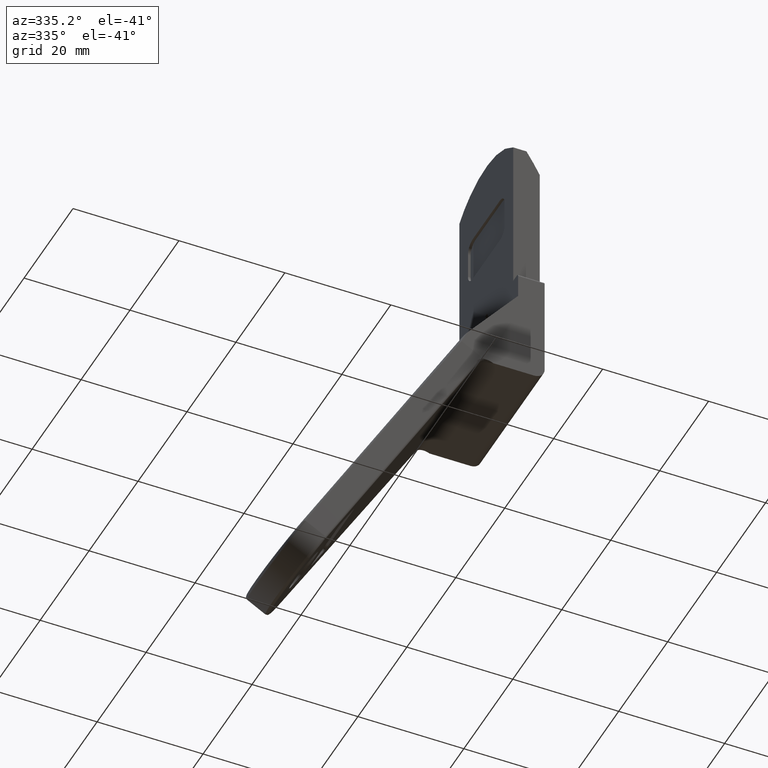
[diagram: clean part render]
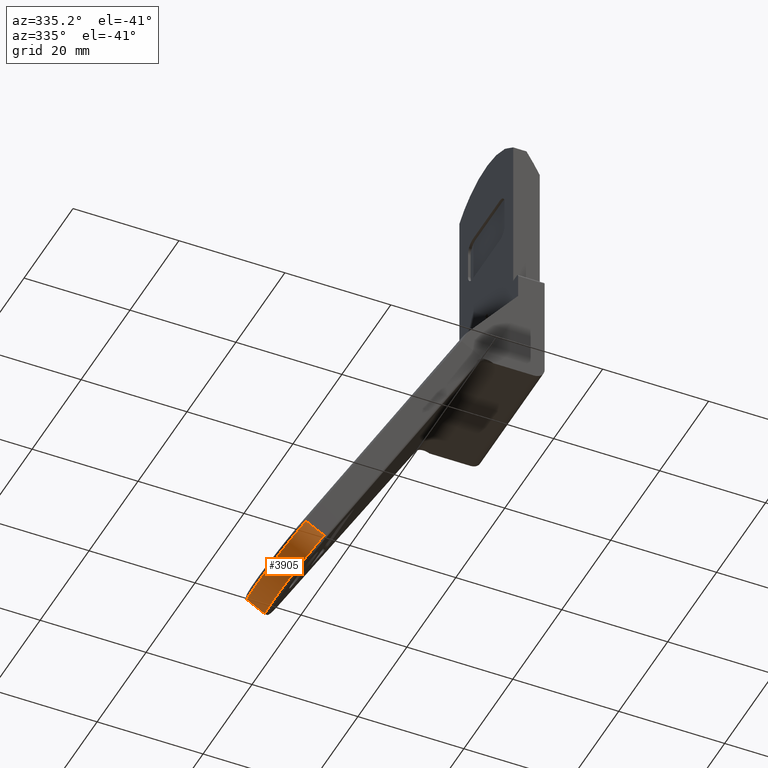
[diagram: same view with one face highlighted and labeled with its STEP entity id]
A machine part, auxiliary view. The second image highlights one B-rep face of the part: STEP entity #3905.
In plain terms, the highlighted face is a freeform B-spline surface patch.
Its self-contained STEP definition (entity closure, byte-faithful):
#244=CARTESIAN_POINT('',(-40.201222914413748,-9.985602287830561,-87.845950522211709));
#245=VERTEX_POINT('',#244);
#470=CARTESIAN_POINT('',(-40.201222914413847,9.985602287830501,-87.845950522211709));
#471=VERTEX_POINT('',#470);
#505=CARTESIAN_POINT('',(-40.201222914413769,9.985602287830494,-87.845950522211751));
#506=CARTESIAN_POINT('',(-44.933012731426551,9.477224538412539,-96.041650745072531));
#507=CARTESIAN_POINT('',(-44.933012731426551,-2.842171E-014,-96.041650745072531));
#508=CARTESIAN_POINT('',(-44.933012731426551,-9.477224538412642,-96.041650745072531));
#509=CARTESIAN_POINT('',(-40.201222914413748,-9.985602287830552,-87.845950522211709));
#517=(BOUNDED_CURVE()B_SPLINE_CURVE(2,(#505,#506,#507,#508,#509),.UNSPECIFIED.,.F.,.U.)B_SPLINE_CURVE_WITH_KNOTS((3,2,3),(0.0,0.500000000000000,1.0),.UNSPECIFIED.)CURVE()GEOMETRIC_REPRESENTATION_ITEM()RATIONAL_B_SPLINE_CURVE((1.0,0.725824376026818,1.0,0.725824376026818,1.0))REPRESENTATION_ITEM(''));
#518=EDGE_CURVE('',#471,#245,#517,.T.);
#744=CARTESIAN_POINT('',(-43.665324437025554,9.985602287830501,-85.845950538797112));
#745=VERTEX_POINT('',#744);
#886=CARTESIAN_POINT('',(-43.665324437025554,-9.985602287830561,-85.845950538797112));
#887=VERTEX_POINT('',#886);
#921=CARTESIAN_POINT('',(-43.665324437025390,-9.985602287830551,-85.845950538797211));
#922=CARTESIAN_POINT('',(-43.824643067347523,-9.968485287978155,-86.121898490919037));
#923=CARTESIAN_POINT('',(-43.982257512631627,-9.936293054079561,-86.394894708078425));
#924=CARTESIAN_POINT('',(-44.294194472674150,-9.842788143355229,-86.935185351682378));
#925=CARTESIAN_POINT('',(-44.602838778803843,-9.720156390614653,-87.469772951628045));
#926=CARTESIAN_POINT('',(-44.904947263568943,-9.539708711460719,-87.993040177319131));
#927=CARTESIAN_POINT('',(-45.129029723687722,-9.382267632776703,-88.381162368999867));
#928=CARTESIAN_POINT('',(-45.203306698099396,-9.326096904892841,-88.509813857763376));
#929=CARTESIAN_POINT('',(-45.351009392329679,-9.206225244401521,-88.765642419139482));
#930=CARTESIAN_POINT('',(-45.424085822035167,-9.142794057716763,-88.892214503551870));
#931=CARTESIAN_POINT('',(-45.639942714412932,-8.943122240299577,-89.266089594510092));
#932=CARTESIAN_POINT('',(-45.779820204686963,-8.797153075820889,-89.508364505554809));
#933=CARTESIAN_POINT('',(-46.051700608230583,-8.480078898575982,-89.979275160688005));
#934=CARTESIAN_POINT('',(-46.183703198841883,-8.308972855876357,-90.207910345915920));
#935=CARTESIAN_POINT('',(-46.439798708504703,-7.941512899484304,-90.651480763864924));
#936=CARTESIAN_POINT('',(-46.563892273236462,-7.745161046819390,-90.866417114936937));
#937=CARTESIAN_POINT('',(-46.713908191330070,-7.483438589684701,-91.126252297425651));
#938=CARTESIAN_POINT('',(-46.743680239564512,-7.430230294577784,-91.177818995709174));
#939=CARTESIAN_POINT('',(-46.802402217802758,-7.322731280156852,-91.279528441783540));
#940=CARTESIAN_POINT('',(-46.889357006373643,-7.159681499379514,-91.430138547989003));
#941=CARTESIAN_POINT('',(-46.972964446055812,-6.991287314973286,-91.574950876062559));
#942=CARTESIAN_POINT('',(-47.135784992564147,-6.647482919674729,-91.856964324718788));
#943=CARTESIAN_POINT('',(-47.341180014776661,-6.170398280089911,-92.212718925677692));
#944=CARTESIAN_POINT('',(-47.523424240472458,-5.656350896247593,-92.528375172314341));
#945=CARTESIAN_POINT('',(-47.651283670229923,-5.256727306283993,-92.749834192704483));
#946=CARTESIAN_POINT('',(-47.692430414494837,-5.121167534724464,-92.821102441706032));
#947=CARTESIAN_POINT('',(-47.751899871968213,-4.914234457601123,-92.924106559745454));
#948=CARTESIAN_POINT('',(-47.771373102473362,-4.844562759803871,-92.957835183122526));
#949=CARTESIAN_POINT('',(-47.809415643291963,-4.704544194668069,-93.023726794236566));
#950=CARTESIAN_POINT('',(-47.827981603994211,-4.634216540706490,-93.055883980276860));
#951=CARTESIAN_POINT('',(-47.918559271012271,-4.281003483840772,-93.212769095790804));
#952=CARTESIAN_POINT('',(-47.983830261427443,-3.993404693362725,-93.325821763276139));
#953=CARTESIAN_POINT('',(-48.100355302737583,-3.408405888095779,-93.527649047727664));
#954=CARTESIAN_POINT('',(-48.151608578742952,-3.111005331471977,-93.616422322545660));
#955=CARTESIAN_POINT('',(-48.240079014708229,-2.506389584893261,-93.769657606947618));
#956=CARTESIAN_POINT('',(-48.277297114711111,-2.199175052255306,-93.834121244733694));
#957=CARTESIAN_POINT('',(-48.322296316181372,-1.730781903485821,-93.912062145102510));
#958=CARTESIAN_POINT('',(-48.335498878360937,-1.573112655927853,-93.934929652743335));
#959=CARTESIAN_POINT('',(-48.357997135244133,-1.258498474889511,-93.973897775307989));
#960=CARTESIAN_POINT('',(-48.367333990242962,-1.101195331922202,-93.990069681951752));
#961=CARTESIAN_POINT('',(-48.389704993227078,-0.629297544903177,-94.028817394305932));
#962=CARTESIAN_POINT('',(-48.404519047925078,-0.000131489199506,-94.054476088761604));
#963=CARTESIAN_POINT('',(-48.389714207478193,0.628973423509678,-94.028833353856442));
#964=CARTESIAN_POINT('',(-48.367356802859533,1.100778876605819,-93.990109194561271));
#965=CARTESIAN_POINT('',(-48.358025601312072,1.258043482656972,-93.973947079982139));
#966=CARTESIAN_POINT('',(-48.335542113147113,1.572564806801873,-93.935004537586849));
#967=CARTESIAN_POINT('',(-48.322346339649677,1.730217009828419,-93.912148788288007));
#968=CARTESIAN_POINT('',(-48.277345243814899,2.198762268885100,-93.834204606783700));
#969=CARTESIAN_POINT('',(-48.240124335777281,2.506043650435769,-93.769736105338964));
#970=CARTESIAN_POINT('',(-48.151653872702283,3.110731956762930,-93.616500773981613));
#971=CARTESIAN_POINT('',(-48.100403338922682,3.408138192624289,-93.527732248837737));
#972=CARTESIAN_POINT('',(-47.983897609628272,3.993093090274212,-93.325938413777479));
#973=CARTESIAN_POINT('',(-47.918643149765742,4.280642269872294,-93.212914378048112));
#974=CARTESIAN_POINT('',(-47.828100425838947,4.633761685811847,-93.056089785741406));
#975=CARTESIAN_POINT('',(-47.809542171348482,4.704069028206904,-93.023945947250979));
#976=CARTESIAN_POINT('',(-47.771516637609210,4.844043870417530,-92.958083793261309));
#977=CARTESIAN_POINT('',(-47.752039364015417,4.913740398384617,-92.924348167049487));
#978=CARTESIAN_POINT('',(-47.692556065801632,5.120747574146174,-92.821320076145426));
#979=CARTESIAN_POINT('',(-47.651401103306931,5.256348203087129,-92.750037592752861));
#980=CARTESIAN_POINT('',(-47.523521367129149,5.656071414928539,-92.528543400612278));
#981=CARTESIAN_POINT('',(-47.341261658329138,6.170190554301434,-92.212860336453460));
#982=CARTESIAN_POINT('',(-47.135887809642071,6.647248970853122,-91.857142409115113));
#983=CARTESIAN_POINT('',(-46.973102201112773,6.991004845542041,-91.575189474811410));
#984=CARTESIAN_POINT('',(-46.917378740084381,7.103246652189990,-91.478673612700163));
#985=CARTESIAN_POINT('',(-46.831567628691573,7.268040369372445,-91.330044413401481));
#986=CARTESIAN_POINT('',(-46.802592775559262,7.322376515443189,-91.279858497487425));
#987=CARTESIAN_POINT('',(-46.743893152739403,7.429846407247518,-91.178187772132134));
#988=CARTESIAN_POINT('',(-46.714127833254942,7.483049457282822,-91.126632728384962));
#989=CARTESIAN_POINT('',(-46.564068345233480,7.744877515096436,-90.866722080570312));
#990=CARTESIAN_POINT('',(-46.439949263114592,7.941283831524529,-90.651741532088948));
#991=CARTESIAN_POINT('',(-46.183825680294582,8.308810142742678,-90.208122490007170));
#992=CARTESIAN_POINT('',(-46.051820513457173,8.479928001420863,-89.979482842624876));
#993=CARTESIAN_POINT('',(-45.779962445617450,8.796998240476283,-89.508610874064274));
#994=CARTESIAN_POINT('',(-45.640109844811583,8.942951583499198,-89.266379072841374));
#995=CARTESIAN_POINT('',(-45.424314980113223,9.142590093572011,-88.892611416971363));
#996=CARTESIAN_POINT('',(-45.351302111706133,9.205977700595545,-88.766149423953152));
#997=CARTESIAN_POINT('',(-45.203550406528201,9.325909061691707,-88.510235973128744));
#998=CARTESIAN_POINT('',(-45.129250493031570,9.382105412810908,-88.381544752706034));
#999=CARTESIAN_POINT('',(-44.905104026587502,9.539612754215524,-87.993311698821998));
#1000=CARTESIAN_POINT('',(-44.602923012724077,9.720120589027962,-87.469918849052291));
#1001=CARTESIAN_POINT('',(-44.294233313107313,9.842774987432106,-86.935252625283496));
#1002=CARTESIAN_POINT('',(-43.982265586405582,9.936292146969681,-86.394908692264636));
#1003=CARTESIAN_POINT('',(-43.824643067347573,9.968485287978103,-86.121898490919037));
#1004=CARTESIAN_POINT('',(-43.665324437025440,9.985602287830501,-85.845950538797197));
#1005=B_SPLINE_CURVE_WITH_KNOTS('',3,(#921,#922,#923,#924,#925,#926,#927,#928,#929,#930,#931,#932,#933,#934,#935,#936,#937,#938,#939,#940,#941,#942,#943,#944,#945,#946,#947,#948,#949,#950,#951,#952,#953,#954,#955,#956,#957,#958,#959,#960,#961,#962,#963,#964,#965,#966,#967,#968,#969,#970,#971,#972,#973,#974,#975,#976,#977,#978,#979,#980,#981,#982,#983,#984,#985,#986,#987,#988,#989,#990,#991,#992,#993,#994,#995,#996,#997,#998,#999,#1000,#1001,#1002,#1003,#1004),.UNSPECIFIED.,.F.,.U.,(4,2,1,2,2,2,2,2,2,2,1,2,1,2,2,2,2,2,2,2,2,2,1,2,2,2,2,2,2,2,2,2,1,2,2,2,2,2,2,2,2,2,1,2,4),(0.0,0.031249999999998,0.062499999999996,0.093749999999995,0.109374999999994,0.124999999999994,0.156249999999992,0.187499999999991,0.218749999999989,0.226562499999989,0.234374999999990,0.249999999999989,0.281249999999988,0.312499999999987,0.328124999999987,0.335937499999987,0.343749999999987,0.374999999999987,0.406249999999988,0.437499999999988,0.453124999999989,0.468749999999989,0.499999999999989,0.531249999999989,0.546874999999989,0.562499999999989,0.593749999999990,0.624999999999990,0.656249999999990,0.664062499999990,0.671874999999990,0.687499999999991,0.718749999999992,0.749999999999993,0.765624999999994,0.773437499999994,0.781249999999994,0.812499999999996,0.843749999999997,0.874999999999999,0.890624999999999,0.906249999999999,0.937499999999999,0.968750000000000,1.0),.UNSPECIFIED.);
#1006=EDGE_CURVE('',#887,#745,#1005,.T.);
#3868=CARTESIAN_POINT('',(-40.201222914413847,9.985602287830501,-87.845950522211709));
#3869=CARTESIAN_POINT('',(-43.665324437025554,9.985602287830501,-85.845950538797112));
#3870=QUASI_UNIFORM_CURVE('',1,(#3868,#3869),.UNSPECIFIED.,.F.,.U.);
#3871=EDGE_CURVE('',#471,#745,#3870,.T.);
#3877=CARTESIAN_POINT('',(-39.983832166491013,-9.996222322935758,-87.669418705256433));
#3878=CARTESIAN_POINT('',(-43.623303897677673,-9.996222322935758,-85.568168682848523));
#3879=CARTESIAN_POINT('',(-44.895462393457578,-9.726133793927801,-96.176611649674314));
#3880=CARTESIAN_POINT('',(-48.534934124644238,-9.726133793927801,-94.075361627266403));
#3881=CARTESIAN_POINT('',(-44.846158461974781,0.100344088972904,-96.091214736906011));
#3882=CARTESIAN_POINT('',(-48.485630193161441,0.100344088972904,-93.989964714498086));
#3883=CARTESIAN_POINT('',(-44.796854530492013,9.926821971873615,-96.005817824137694));
#3884=CARTESIAN_POINT('',(-48.436326261678687,9.926821971873634,-93.904567801729755));
#3885=CARTESIAN_POINT('',(-39.883503359023067,9.999724814584383,-87.495644116459545));
#3886=CARTESIAN_POINT('',(-43.522975090209727,9.999724814584397,-85.394394094051592));
#3894=(BOUNDED_SURFACE()B_SPLINE_SURFACE(1,2,((#3877,#3879,#3881,#3883,#3885),(#3878,#3880,#3882,#3884,#3886)),.UNSPECIFIED.,.F.,.F.,.U.)B_SPLINE_SURFACE_WITH_KNOTS((2,2),(3,2,3),(0.0,4.202499986766954),(0.0,16.364432057108420,32.728864114216833),.UNSPECIFIED.)GEOMETRIC_REPRESENTATION_ITEM()RATIONAL_B_SPLINE_SURFACE(((1.0,0.713250449154182,1.0,0.713250449154182,1.0),(1.0,0.713250449154182,1.0,0.713250449154182,1.0)))REPRESENTATION_ITEM('')SURFACE());
#3895=ORIENTED_EDGE('',*,*,#3871,.F.);
#3896=ORIENTED_EDGE('',*,*,#518,.T.);
#3897=CARTESIAN_POINT('',(-40.201222914413748,-9.985602287830561,-87.845950522211709));
#3898=CARTESIAN_POINT('',(-43.665324437025554,-9.985602287830561,-85.845950538797112));
#3899=QUASI_UNIFORM_CURVE('',1,(#3897,#3898),.UNSPECIFIED.,.F.,.U.);
#3900=EDGE_CURVE('',#245,#887,#3899,.T.);
#3901=ORIENTED_EDGE('',*,*,#3900,.T.);
#3902=ORIENTED_EDGE('',*,*,#1006,.T.);
#3903=EDGE_LOOP('',(#3895,#3896,#3901,#3902));
#3904=FACE_OUTER_BOUND('',#3903,.T.);
#3905=ADVANCED_FACE('',(#3904),#3894,.T.);